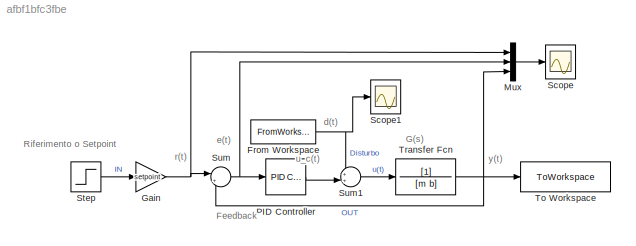
MODEL slx_afbf1bfc3fbe
KIND model
CONFIG AbsTol = auto
CONFIG EnableMultiTasking = off
CONFIG FixedStep = auto
CONFIG MaxStep = auto
CONFIG MinStep = auto
CONFIG RelTol = 1e-3
CONFIG SampleTimeConstraint = Unconstrained
CONFIG SolverName = VariableStepAuto
CONFIG StartTime = 0.0
CONFIG StopTime = 20
BLOCK [FromWorkspace] From Workspace
  VariableName = pendenza
BLOCK [Gain] Gain
  Gain = setpoint
BLOCK [Mux] Mux
  DisplayOption = bar
  Inputs = 3
BLOCK [Reference] PID Controller  REF=slpidlib/PID Controller
  LibrarySourceBlock = simulink/Continuous/PID Controller
  SourceBlock = slpidlib/PID Controller
  SourceType = PID 1dof
BLOCK [Scope] Scope
  ActiveDisplayYMaximum = 22.98525323036927
  ActiveDisplayYMinimum = -2.9852532303692709
  Floating = off
  GraphicalSettings = {"Style":{"BackgroundColor":[0.12941176470588237,0.12941176470588237,0.12941176470588237],"AxesColor":[0.07058823529411765,0.07058823529411765,0.07058823529411765],"LabelsColor":[0.8509803921568627,0.8509803921568627,0.8509803921568627],"PreserveColors":false,"Visible":[true,true,true],"LineStyle":["-","-","-"],"LineWidth":[1.5,1.5,1.5],"BarWidth":[0.9,0.9,0.9],"LineColor":["auto","auto","auto"],"...<+2202ch>
  MultipleDisplayCache = [{"MaxYLimMag":22.98525323036927,"MaxYLimReal":22.98525323036927,"MinYLimMag":0,"MinYLimReal":-2.9852532303692709,"PlotAsMagnitudePhase":false,"ShowGrid":true,"ShowLegend":true,"Title":"%<SignalLabel>","YLabel":""}]
  NumInputPorts = 1
  ScopeFrameLocation = window
  ShowLegend = on
  WasSavedAsWebScope = on
  WindowPosition = [1210.000000,146.000000,654.000000,419.000000,]
BLOCK [Scope] Scope1
  ActiveDisplayYMaximum = 974.693378396798
  ActiveDisplayYMinimum = -772.24040557118235
  DataLoggingVariableName = ScopeData1
  Floating = off
  GraphicalSettings = {"Style":{"BackgroundColor":[0.12941176470588237,0.12941176470588237,0.12941176470588237],"AxesColor":[0.07058823529411765,0.07058823529411765,0.07058823529411765],"LabelsColor":[0.8509803921568627,0.8509803921568627,0.8509803921568627],"PreserveColors":false,"Visible":[true],"LineStyle":["-"],"LineWidth":[1.5],"BarWidth":[0.9],"LineColor":["auto"],"LineFaceAlpha":[1],"LineEdgeAlpha":[1],"Marker":...<+1989ch>
  MultipleDisplayCache = [{"MaxYLimMag":974.693378396798,"MaxYLimReal":974.693378396798,"MinYLimMag":0,"MinYLimReal":-772.24040557118235,"PlotAsMagnitudePhase":false,"ShowGrid":true,"ShowLegend":true,"Title":"%<SignalLabel>","YLabel":""}]
  NumInputPorts = 1
  ScopeFrameLocation = window
  ShowLegend = on
  WasSavedAsWebScope = on
  WindowPosition = [1210.000000,178.000000,654.000000,419.000000,]
BLOCK [Step] Step
  SampleTime = 0
  Time = 0
BLOCK [Sum] Sum
  Inputs = |+-
BLOCK [Sum] Sum1
  Inputs = ++|
BLOCK [ToWorkspace] To Workspace
  FixptAsFi = on
  MaxDataPoints = inf
  SampleTime = -1
  SaveFormat = Timeseries
  VariableName = velocita
BLOCK [TransferFcn] Transfer Fcn
  Denominator = [m b]
ANNOTATION (root): Feedback
ANNOTATION (root): G(s)
ANNOTATION (root): Riferimento o Setpoint
ANNOTATION (root): d(t)
ANNOTATION (root): e(t)
ANNOTATION (root): r(t)
ANNOTATION (root): u_c(t)
ANNOTATION (root): y(t)
NET From Workspace:1 -> Scope1:1, Sum1:1
NET Gain:1 -> Mux:1, Sum:1
LINE Mux:1 -> Scope:1
LINE PID Controller:1 -> Sum1:2
LINE Step:1 -> Gain:1
LINE Sum1:1 -> Transfer Fcn:1
NET Sum:1 -> Mux:2, PID Controller:1
NET Transfer Fcn:1 -> Mux:3, Sum:2, To Workspace:1
note: NET lines group one-source signal fan-out (src -> all destinations, sorted); 1:1 wires keep LINE
